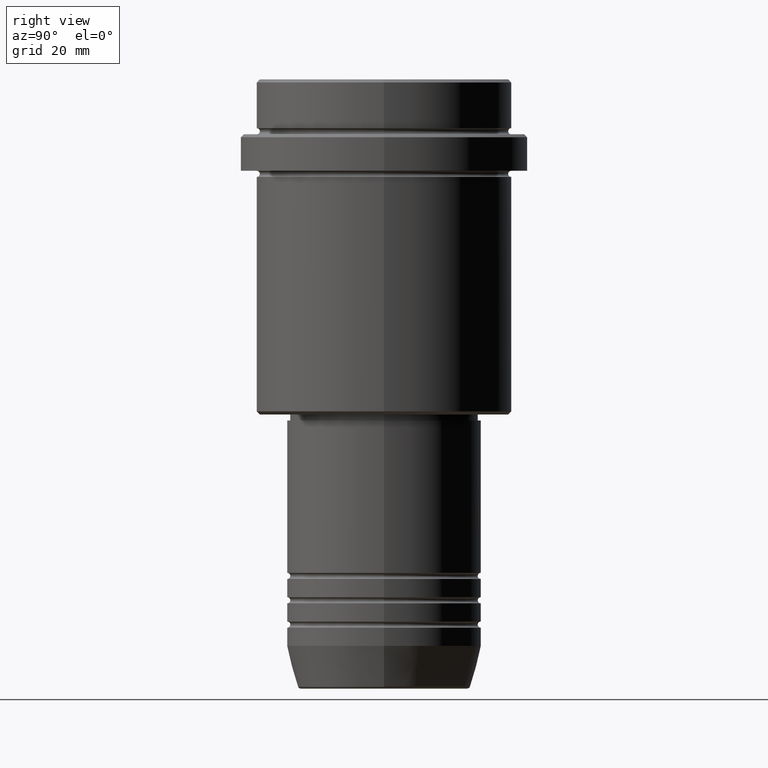
[diagram: clean part render]
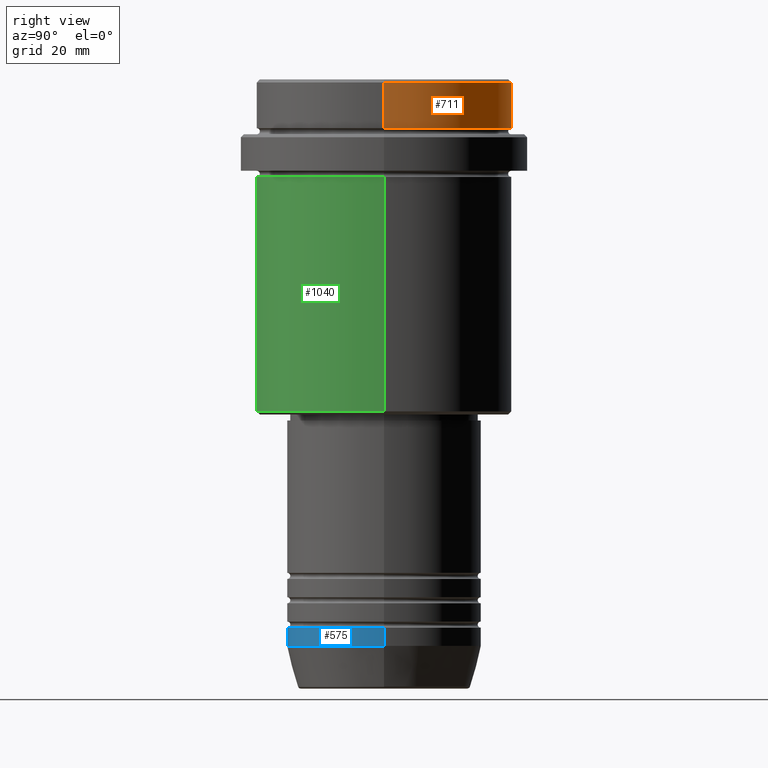
[diagram: same view with three faces highlighted in distinct colors, each labeled with its STEP entity id]
A machine part, right view with three faces highlighted in distinct colors.
Their STEP definitions:

[orange] entity #711 — the highlighted cylindrical surface (partial cylindrical patch) has radius 21 mm, axis along (-0, -0, 1).
#16 = DIRECTION ( 'NONE',  ( 1.000000000000000000, 0.000000000000000000, 0.000000000000000000 ) ) ;
#141 = CARTESIAN_POINT ( 'NONE',  ( 0.000000000000000000, 0.000000000000000000, 0.000000000000000000 ) ) ;
#159 = LINE ( 'NONE', #952, #346 ) ;
#217 = DIRECTION ( 'NONE',  ( 1.000000000000000000, 0.000000000000000000, 0.000000000000000000 ) ) ;
#240 = CARTESIAN_POINT ( 'NONE',  ( 0.000000000000000000, 0.000000000000000000, -0.4999999999999970024 ) ) ;
#258 = EDGE_CURVE ( 'NONE', #595, #263, #348, .T. ) ;
#261 = DIRECTION ( 'NONE',  ( 1.000000000000000000, 0.000000000000000000, 0.000000000000000000 ) ) ;
#263 = VERTEX_POINT ( 'NONE', #773 ) ;
#283 = CYLINDRICAL_SURFACE ( 'NONE', #638, 21.00000000000000000 ) ;
#317 = DIRECTION ( 'NONE',  ( -0.000000000000000000, -0.000000000000000000, 1.000000000000000000 ) ) ;
#344 = ORIENTED_EDGE ( 'NONE', *, *, #1144, .T. ) ;
#346 = VECTOR ( 'NONE', #1353, 1000.000000000000000 ) ;
#348 = CIRCLE ( 'NONE', #889, 21.00000000000000000 ) ;
#386 = EDGE_LOOP ( 'NONE', ( #344, #1248, #715, #827 ) ) ;
#567 = DIRECTION ( 'NONE',  ( -0.000000000000000000, -0.000000000000000000, 1.000000000000000000 ) ) ;
#595 = VERTEX_POINT ( 'NONE', #728 ) ;
#638 = AXIS2_PLACEMENT_3D ( 'NONE', #141, #926, #261 ) ;
#665 = VECTOR ( 'NONE', #317, 1000.000000000000000 ) ;
#711 = ADVANCED_FACE ( 'NONE', ( #900 ), #283, .T. ) ;
#715 = ORIENTED_EDGE ( 'NONE', *, *, #258, .T. ) ;
#719 = CARTESIAN_POINT ( 'NONE',  ( 21.00000000000000000, 0.000000000000000000, -7.999999999999998224 ) ) ;
#728 = CARTESIAN_POINT ( 'NONE',  ( -21.00000000000000000, 2.571758278209441661E-15, -0.4999999999999970024 ) ) ;
#746 = CARTESIAN_POINT ( 'NONE',  ( 21.00000000000000000, 0.000000000000000000, 0.000000000000000000 ) ) ;
#773 = CARTESIAN_POINT ( 'NONE',  ( 21.00000000000000000, 0.000000000000000000, -0.4999999999999970024 ) ) ;
#826 = AXIS2_PLACEMENT_3D ( 'NONE', #1243, #567, #16 ) ;
#827 = ORIENTED_EDGE ( 'NONE', *, *, #829, .F. ) ;
#829 = EDGE_CURVE ( 'NONE', #1266, #263, #1291, .T. ) ;
#889 = AXIS2_PLACEMENT_3D ( 'NONE', #240, #1207, #217 ) ;
#900 = FACE_OUTER_BOUND ( 'NONE', #386, .T. ) ;
#926 = DIRECTION ( 'NONE',  ( -0.000000000000000000, -0.000000000000000000, 1.000000000000000000 ) ) ;
#952 = CARTESIAN_POINT ( 'NONE',  ( -21.00000000000000000, 2.571758278209441661E-15, 0.000000000000000000 ) ) ;
#955 = VERTEX_POINT ( 'NONE', #1388 ) ;
#1144 = EDGE_CURVE ( 'NONE', #1266, #955, #1343, .T. ) ;
#1207 = DIRECTION ( 'NONE',  ( 0.000000000000000000, 0.000000000000000000, -1.000000000000000000 ) ) ;
#1243 = CARTESIAN_POINT ( 'NONE',  ( 0.000000000000000000, 0.000000000000000000, -7.999999999999998224 ) ) ;
#1248 = ORIENTED_EDGE ( 'NONE', *, *, #1268, .T. ) ;
#1266 = VERTEX_POINT ( 'NONE', #719 ) ;
#1268 = EDGE_CURVE ( 'NONE', #955, #595, #159, .T. ) ;
#1291 = LINE ( 'NONE', #746, #665 ) ;
#1343 = CIRCLE ( 'NONE', #826, 21.00000000000000000 ) ;
#1353 = DIRECTION ( 'NONE',  ( -0.000000000000000000, -0.000000000000000000, 1.000000000000000000 ) ) ;
#1388 = CARTESIAN_POINT ( 'NONE',  ( -21.00000000000000000, 2.571758278209441661E-15, -7.999999999999998224 ) ) ;

[blue] entity #575 — the highlighted cylindrical surface (partial cylindrical patch) has radius 16 mm, axis along (-0, -0, 1).
#11 = VERTEX_POINT ( 'NONE', #487 ) ;
#43 = EDGE_CURVE ( 'NONE', #178, #601, #521, .T. ) ;
#63 = AXIS2_PLACEMENT_3D ( 'NONE', #954, #510, #1084 ) ;
#178 = VERTEX_POINT ( 'NONE', #404 ) ;
#185 = CYLINDRICAL_SURFACE ( 'NONE', #63, 16.00000000000000000 ) ;
#189 = CARTESIAN_POINT ( 'NONE',  ( -16.00000000000000000, 1.959434878635765131E-15, -93.00000000000000000 ) ) ;
#200 = ORIENTED_EDGE ( 'NONE', *, *, #652, .F. ) ;
#229 = CARTESIAN_POINT ( 'NONE',  ( 0.000000000000000000, 0.000000000000000000, -93.00000000000000000 ) ) ;
#246 = VECTOR ( 'NONE', #1077, 1000.000000000000000 ) ;
#292 = EDGE_CURVE ( 'NONE', #974, #178, #610, .T. ) ;
#296 = CARTESIAN_POINT ( 'NONE',  ( 16.00000000000000000, 0.000000000000000000, 0.000000000000000000 ) ) ;
#311 = FACE_OUTER_BOUND ( 'NONE', #1261, .T. ) ;
#343 = EDGE_CURVE ( 'NONE', #974, #11, #349, .T. ) ;
#349 = LINE ( 'NONE', #781, #363 ) ;
#363 = VECTOR ( 'NONE', #658, 1000.000000000000000 ) ;
#404 = CARTESIAN_POINT ( 'NONE',  ( 16.00000000000000000, 0.000000000000000000, -93.00000000000000000 ) ) ;
#428 = CARTESIAN_POINT ( 'NONE',  ( 0.000000000000000000, 0.000000000000000000, -90.00000000000000000 ) ) ;
#487 = CARTESIAN_POINT ( 'NONE',  ( -16.00000000000000000, 1.959434878635765131E-15, -90.00000000000000000 ) ) ;
#510 = DIRECTION ( 'NONE',  ( -0.000000000000000000, -0.000000000000000000, 1.000000000000000000 ) ) ;
#521 = LINE ( 'NONE', #296, #246 ) ;
#540 = CIRCLE ( 'NONE', #941, 16.00000000000000000 ) ;
#562 = DIRECTION ( 'NONE',  ( 1.000000000000000000, 0.000000000000000000, 0.000000000000000000 ) ) ;
#575 = ADVANCED_FACE ( 'NONE', ( #311 ), #185, .T. ) ;
#601 = VERTEX_POINT ( 'NONE', #948 ) ;
#610 = CIRCLE ( 'NONE', #1171, 16.00000000000000000 ) ;
#652 = EDGE_CURVE ( 'NONE', #11, #601, #540, .T. ) ;
#658 = DIRECTION ( 'NONE',  ( -0.000000000000000000, -0.000000000000000000, 1.000000000000000000 ) ) ;
#781 = CARTESIAN_POINT ( 'NONE',  ( -16.00000000000000000, 1.959434878635765131E-15, 0.000000000000000000 ) ) ;
#834 = ORIENTED_EDGE ( 'NONE', *, *, #292, .T. ) ;
#864 = DIRECTION ( 'NONE',  ( 1.000000000000000000, 0.000000000000000000, 0.000000000000000000 ) ) ;
#877 = ORIENTED_EDGE ( 'NONE', *, *, #343, .F. ) ;
#895 = DIRECTION ( 'NONE',  ( -0.000000000000000000, -0.000000000000000000, 1.000000000000000000 ) ) ;
#941 = AXIS2_PLACEMENT_3D ( 'NONE', #428, #1201, #864 ) ;
#948 = CARTESIAN_POINT ( 'NONE',  ( 16.00000000000000000, 0.000000000000000000, -90.00000000000000000 ) ) ;
#954 = CARTESIAN_POINT ( 'NONE',  ( 0.000000000000000000, 0.000000000000000000, 0.000000000000000000 ) ) ;
#974 = VERTEX_POINT ( 'NONE', #189 ) ;
#1077 = DIRECTION ( 'NONE',  ( -0.000000000000000000, -0.000000000000000000, 1.000000000000000000 ) ) ;
#1084 = DIRECTION ( 'NONE',  ( 1.000000000000000000, 0.000000000000000000, 0.000000000000000000 ) ) ;
#1171 = AXIS2_PLACEMENT_3D ( 'NONE', #229, #895, #562 ) ;
#1201 = DIRECTION ( 'NONE',  ( -0.000000000000000000, -0.000000000000000000, 1.000000000000000000 ) ) ;
#1256 = ORIENTED_EDGE ( 'NONE', *, *, #43, .T. ) ;
#1261 = EDGE_LOOP ( 'NONE', ( #877, #834, #1256, #200 ) ) ;

[green] entity #1040 — the highlighted cylindrical surface (partial cylindrical patch) has radius 21 mm, axis along (-0, -0, 1).
#14 = DIRECTION ( 'NONE',  ( -0.000000000000000000, -0.000000000000000000, 1.000000000000000000 ) ) ;
#39 = CYLINDRICAL_SURFACE ( 'NONE', #435, 21.00000000000000000 ) ;
#65 = AXIS2_PLACEMENT_3D ( 'NONE', #1312, #14, #543 ) ;
#126 = ORIENTED_EDGE ( 'NONE', *, *, #867, .T. ) ;
#247 = CIRCLE ( 'NONE', #762, 21.00000000000000000 ) ;
#337 = EDGE_CURVE ( 'NONE', #928, #442, #669, .T. ) ;
#356 = CARTESIAN_POINT ( 'NONE',  ( -21.00000000000000000, 2.571758278209441661E-15, -16.00000000000000355 ) ) ;
#369 = DIRECTION ( 'NONE',  ( 1.000000000000000000, 0.000000000000000000, 0.000000000000000000 ) ) ;
#394 = LINE ( 'NONE', #1051, #1199 ) ;
#406 = CARTESIAN_POINT ( 'NONE',  ( 0.000000000000000000, 0.000000000000000000, 0.000000000000000000 ) ) ;
#435 = AXIS2_PLACEMENT_3D ( 'NONE', #406, #841, #533 ) ;
#442 = VERTEX_POINT ( 'NONE', #932 ) ;
#533 = DIRECTION ( 'NONE',  ( 1.000000000000000000, 0.000000000000000000, 0.000000000000000000 ) ) ;
#543 = DIRECTION ( 'NONE',  ( -1.000000000000000000, 0.000000000000000000, 0.000000000000000000 ) ) ;
#570 = ORIENTED_EDGE ( 'NONE', *, *, #1189, .F. ) ;
#669 = LINE ( 'NONE', #997, #797 ) ;
#707 = ORIENTED_EDGE ( 'NONE', *, *, #1137, .F. ) ;
#727 = VERTEX_POINT ( 'NONE', #356 ) ;
#762 = AXIS2_PLACEMENT_3D ( 'NONE', #1157, #846, #369 ) ;
#765 = DIRECTION ( 'NONE',  ( -0.000000000000000000, -0.000000000000000000, 1.000000000000000000 ) ) ;
#797 = VECTOR ( 'NONE', #765, 1000.000000000000000 ) ;
#841 = DIRECTION ( 'NONE',  ( -0.000000000000000000, -0.000000000000000000, 1.000000000000000000 ) ) ;
#846 = DIRECTION ( 'NONE',  ( -0.000000000000000000, -0.000000000000000000, 1.000000000000000000 ) ) ;
#849 = VERTEX_POINT ( 'NONE', #865 ) ;
#865 = CARTESIAN_POINT ( 'NONE',  ( -21.00000000000000000, 2.571758278209441661E-15, -54.49999999999999289 ) ) ;
#867 = EDGE_CURVE ( 'NONE', #849, #928, #871, .T. ) ;
#871 = CIRCLE ( 'NONE', #65, 21.00000000000000000 ) ;
#916 = CARTESIAN_POINT ( 'NONE',  ( 21.00000000000000000, 0.000000000000000000, -54.49999999999999289 ) ) ;
#928 = VERTEX_POINT ( 'NONE', #916 ) ;
#932 = CARTESIAN_POINT ( 'NONE',  ( 21.00000000000000000, 0.000000000000000000, -16.00000000000000355 ) ) ;
#997 = CARTESIAN_POINT ( 'NONE',  ( 21.00000000000000000, 0.000000000000000000, 0.000000000000000000 ) ) ;
#1040 = ADVANCED_FACE ( 'NONE', ( #1382 ), #39, .T. ) ;
#1051 = CARTESIAN_POINT ( 'NONE',  ( -21.00000000000000000, 2.571758278209441661E-15, 0.000000000000000000 ) ) ;
#1088 = ORIENTED_EDGE ( 'NONE', *, *, #337, .T. ) ;
#1137 = EDGE_CURVE ( 'NONE', #727, #442, #247, .T. ) ;
#1152 = EDGE_LOOP ( 'NONE', ( #570, #126, #1088, #707 ) ) ;
#1157 = CARTESIAN_POINT ( 'NONE',  ( 0.000000000000000000, 0.000000000000000000, -16.00000000000000355 ) ) ;
#1189 = EDGE_CURVE ( 'NONE', #849, #727, #394, .T. ) ;
#1199 = VECTOR ( 'NONE', #1369, 1000.000000000000000 ) ;
#1312 = CARTESIAN_POINT ( 'NONE',  ( 0.000000000000000000, 0.000000000000000000, -54.49999999999999289 ) ) ;
#1369 = DIRECTION ( 'NONE',  ( -0.000000000000000000, -0.000000000000000000, 1.000000000000000000 ) ) ;
#1382 = FACE_OUTER_BOUND ( 'NONE', #1152, .T. ) ;